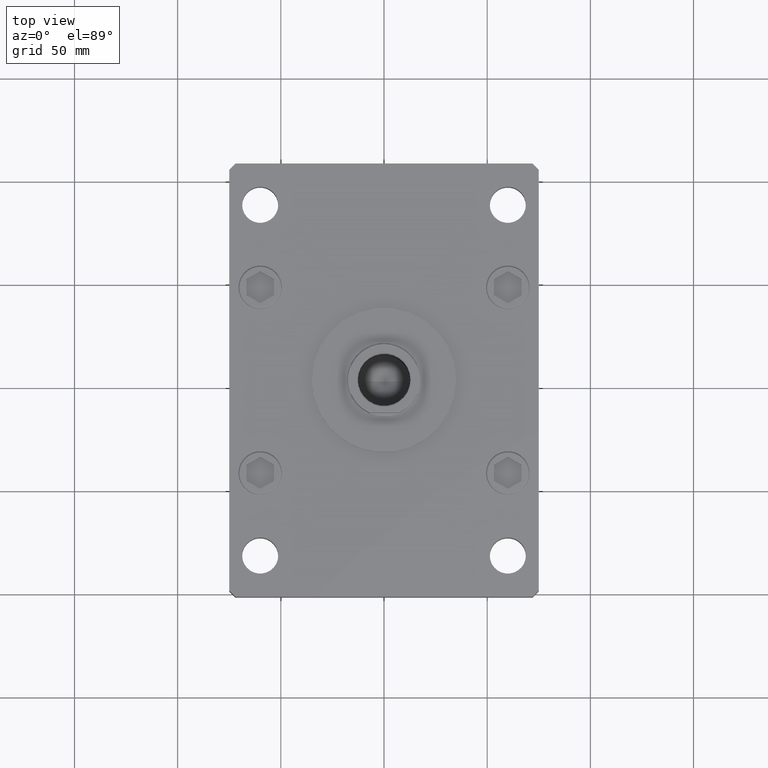
[diagram: clean part render]
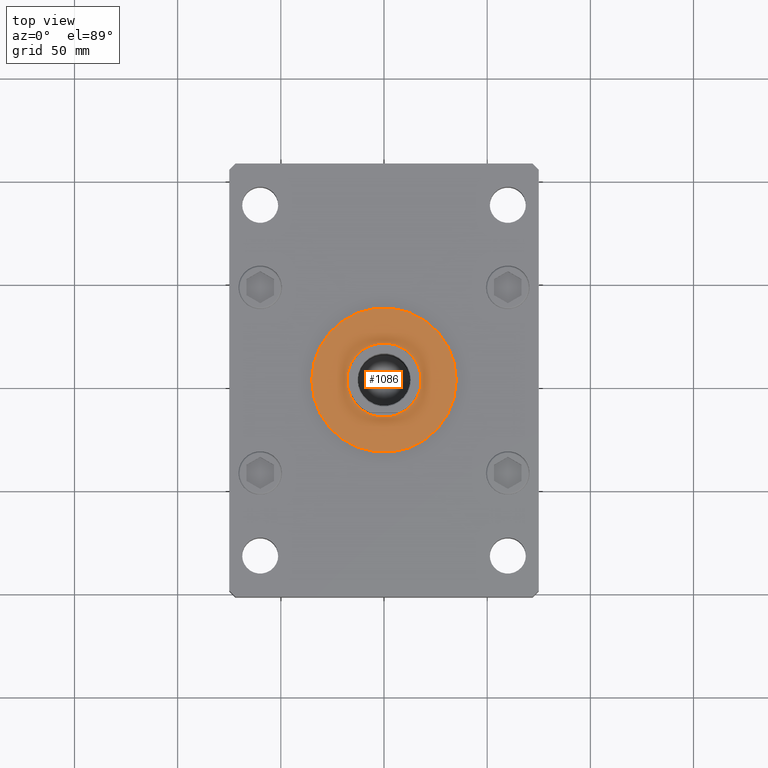
[diagram: same view with one face highlighted and labeled with its STEP entity id]
A machine part, top view. The second image highlights one B-rep face of the part: STEP entity #1086.
In plain terms, the highlighted planar face has unit normal (0, 0, 1).
Its self-contained STEP definition (entity closure, byte-faithful):
#100 = FACE_OUTER_BOUND ( 'NONE', #23597, .T. ) ;
#1086 = ADVANCED_FACE ( 'NONE', ( #21498, #100 ), #8235, .T. ) ;
#2902 = ORIENTED_EDGE ( 'NONE', *, *, #22085, .F. ) ;
#4171 = DIRECTION ( 'NONE',  ( 0.000000000000000000, 0.000000000000000000, 1.000000000000000000 ) ) ;
#8235 = PLANE ( 'NONE',  #42304 ) ;
#8354 = ORIENTED_EDGE ( 'NONE', *, *, #12137, .F. ) ;
#9704 = CARTESIAN_POINT ( 'NONE',  ( 0.000000000000000000, 0.000000000000000000, 28.99999999999999645 ) ) ;
#10769 = DIRECTION ( 'NONE',  ( 1.000000000000000000, 0.000000000000000000, 0.000000000000000000 ) ) ;
#12137 = EDGE_CURVE ( 'NONE', #24201, #44113, #52936, .T. ) ;
#16072 = DIRECTION ( 'NONE',  ( 0.000000000000000000, 0.000000000000000000, 1.000000000000000000 ) ) ;
#16343 = DIRECTION ( 'NONE',  ( 1.000000000000000000, 0.000000000000000000, 0.000000000000000000 ) ) ;
#16609 = VERTEX_POINT ( 'NONE', #26283 ) ;
#16750 = CIRCLE ( 'NONE', #45248, 35.00000000000000711 ) ;
#19192 = DIRECTION ( 'NONE',  ( 0.000000000000000000, 0.000000000000000000, 1.000000000000000000 ) ) ;
#20090 = AXIS2_PLACEMENT_3D ( 'NONE', #23037, #47379, #43847 ) ;
#20695 = DIRECTION ( 'NONE',  ( 1.000000000000000000, 0.000000000000000000, -0.000000000000000000 ) ) ;
#20738 = ORIENTED_EDGE ( 'NONE', *, *, #45934, .T. ) ;
#21498 = FACE_BOUND ( 'NONE', #40744, .T. ) ;
#22085 = EDGE_CURVE ( 'NONE', #44113, #24201, #24910, .T. ) ;
#23037 = CARTESIAN_POINT ( 'NONE',  ( 0.000000000000000000, 0.000000000000000000, 28.99999999999999645 ) ) ;
#23597 = EDGE_LOOP ( 'NONE', ( #46785, #20738 ) ) ;
#24201 = VERTEX_POINT ( 'NONE', #46727 ) ;
#24910 = CIRCLE ( 'NONE', #36145, 18.00000000000000000 ) ;
#25961 = DIRECTION ( 'NONE',  ( 0.000000000000000000, 0.000000000000000000, 1.000000000000000000 ) ) ;
#26283 = CARTESIAN_POINT ( 'NONE',  ( 35.00000000000000711, 4.286263797015737285E-15, 28.99999999999999645 ) ) ;
#34323 = DIRECTION ( 'NONE',  ( 1.000000000000000000, 0.000000000000000000, 0.000000000000000000 ) ) ;
#36145 = AXIS2_PLACEMENT_3D ( 'NONE', #47850, #19192, #10769 ) ;
#37561 = CIRCLE ( 'NONE', #49653, 35.00000000000000711 ) ;
#40422 = CARTESIAN_POINT ( 'NONE',  ( 18.00000000000000000, 0.000000000000000000, 28.99999999999999645 ) ) ;
#40744 = EDGE_LOOP ( 'NONE', ( #2902, #8354 ) ) ;
#41247 = CARTESIAN_POINT ( 'NONE',  ( 0.000000000000000000, 0.000000000000000000, 28.99999999999999645 ) ) ;
#41628 = VERTEX_POINT ( 'NONE', #43418 ) ;
#41765 = CARTESIAN_POINT ( 'NONE',  ( 0.000000000000000000, 0.000000000000000000, 28.99999999999999645 ) ) ;
#42304 = AXIS2_PLACEMENT_3D ( 'NONE', #41247, #4171, #20695 ) ;
#43418 = CARTESIAN_POINT ( 'NONE',  ( -35.00000000000000711, 0.000000000000000000, 28.99999999999999645 ) ) ;
#43847 = DIRECTION ( 'NONE',  ( 1.000000000000000000, 0.000000000000000000, 0.000000000000000000 ) ) ;
#44113 = VERTEX_POINT ( 'NONE', #40422 ) ;
#45248 = AXIS2_PLACEMENT_3D ( 'NONE', #41765, #16072, #16343 ) ;
#45934 = EDGE_CURVE ( 'NONE', #16609, #41628, #16750, .T. ) ;
#46727 = CARTESIAN_POINT ( 'NONE',  ( -18.00000000000000000, 2.204364238465235428E-15, 28.99999999999999645 ) ) ;
#46785 = ORIENTED_EDGE ( 'NONE', *, *, #47551, .T. ) ;
#47379 = DIRECTION ( 'NONE',  ( 0.000000000000000000, 0.000000000000000000, 1.000000000000000000 ) ) ;
#47551 = EDGE_CURVE ( 'NONE', #41628, #16609, #37561, .T. ) ;
#47850 = CARTESIAN_POINT ( 'NONE',  ( 0.000000000000000000, 0.000000000000000000, 28.99999999999999645 ) ) ;
#49653 = AXIS2_PLACEMENT_3D ( 'NONE', #9704, #25961, #34323 ) ;
#52936 = CIRCLE ( 'NONE', #20090, 18.00000000000000000 ) ;